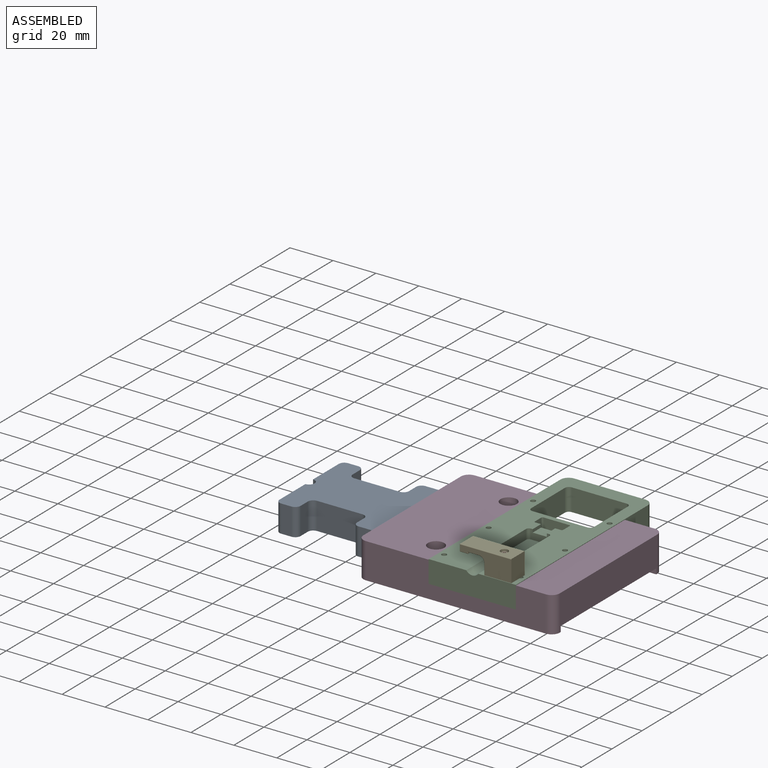
[diagram: assembled view]
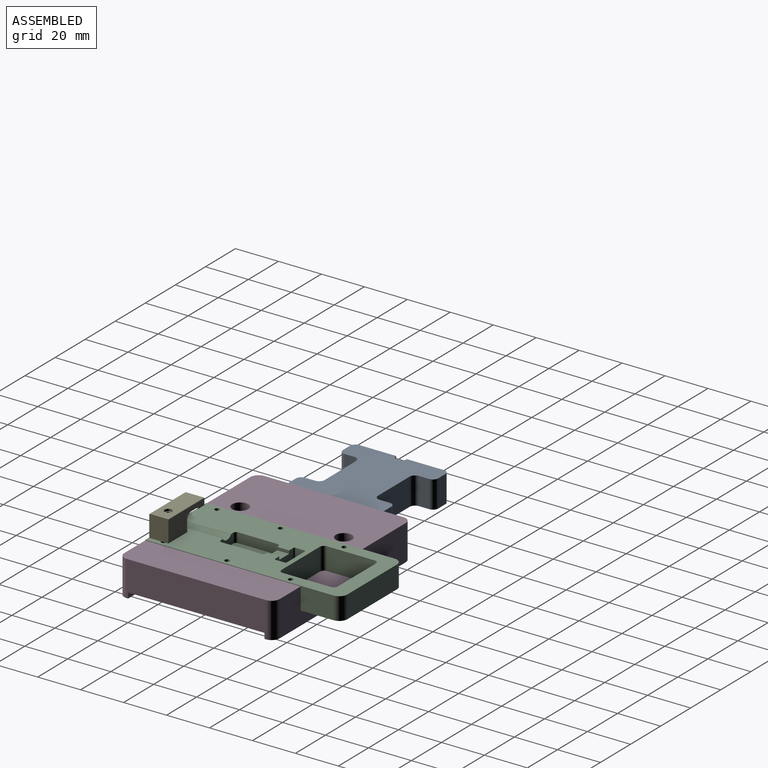
[diagram: assembled view, second angle]
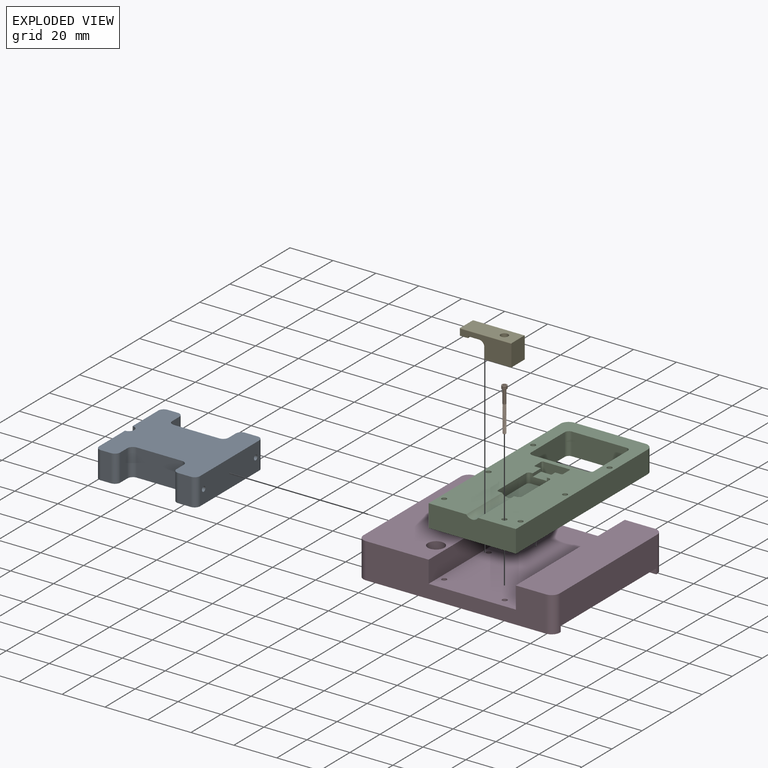
[diagram: exploded view]
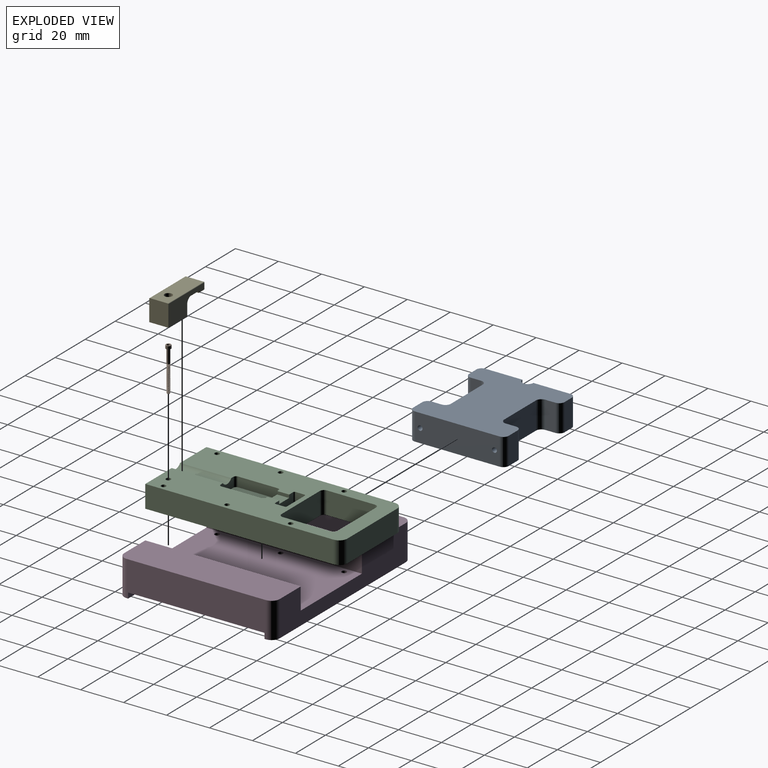
[diagram: exploded view, second angle]
ASSEMBLY  parts=5 mates=7
PART A: 30 faces, bbox 44.5x47x12.7 mm
  f0: plane 39.37x12.7mm, normal (0,-1,0), area 491.8mm2, adj f4,f5,f25,f26,f28,f29
  f1: plane 17.15x12.7mm, normal (0,1,0), area 217.7mm2, adj f17,f25,f26,f27
  f2: cylinder r=2.54mm len=12.7mm, axis (0,0,-1), area 50.7mm2, adj f3,f24,f25,f26
  f3: plane 12.7x5.88mm, normal (-1,0,0), area 74.7mm2, adj f2,f4,f25,f26
  f4: cylinder r=2.54mm len=12.7mm, axis (0,0,-1), area 50.7mm2, adj f0,f3,f25,f26
  f5: cylinder r=2.54mm len=12.7mm, axis (0,0,-1), area 50.7mm2, adj f0,f6,f25,f26
  f6: plane 12.7x5.88mm, normal (1,0,0), area 74.7mm2, adj f5,f7,f25,f26
  f7: cylinder r=2.54mm len=12.7mm, axis (0,0,-1), area 50.7mm2, adj f6,f8,f25,f26
  f8: plane 12.7x4.74mm, normal (0,1,0), area 56.1mm2, adj f7,f9,f25,f26,f29
  f9: cylinder r=2.54mm len=12.7mm, axis (0,0,-1), area 50.7mm2, adj f8,f10,f25,f26
  f10: plane 21.13x12.7mm, normal (1,0,0), area 268.4mm2, adj f9,f11,f25,f26
  f11: cylinder r=2.54mm len=12.7mm, axis (0,0,-1), area 50.7mm2, adj f10,f12,f25,f26
  f12: plane 12.7x4.74mm, normal (0,-1,0), area 60.2mm2, adj f11,f13,f25,f26
  f13: cylinder r=2.54mm len=12.7mm, axis (0,0,-1), area 50.7mm2, adj f12,f14,f25,f26
  f14: plane 12.7x4.74mm, normal (1,0,0), area 60.2mm2, adj f13,f15,f25,f26
  f15: cylinder r=2.54mm len=12.7mm, axis (0,0,-1), area 50.7mm2, adj f14,f16,f25,f26
  f16: plane 17.15x12.7mm, normal (0,1,0), area 217.7mm2, adj f15,f25,f26,f27
  f17: cylinder r=2.54mm len=12.7mm, axis (0,0,-1), area 50.7mm2, adj f1,f18,f25,f26
  f18: plane 12.7x4.74mm, normal (-1,0,0), area 60.2mm2, adj f17,f19,f25,f26
  f19: cylinder r=2.54mm len=12.7mm, axis (0,0,-1), area 50.7mm2, adj f18,f20,f25,f26
  f20: plane 12.7x4.74mm, normal (0,-1,0), area 60.2mm2, adj f19,f21,f25,f26
  f21: cylinder r=2.54mm len=12.7mm, axis (0,0,-1), area 50.7mm2, adj f20,f22,f25,f26
  f22: plane 21.13x12.7mm, normal (-1,0,0), area 268.4mm2, adj f21,f23,f25,f26
  f23: cylinder r=2.54mm len=12.7mm, axis (0,0,-1), area 50.7mm2, adj f22,f24,f25,f26
  f24: plane 12.7x4.74mm, normal (0,1,0), area 56.1mm2, adj f2,f23,f25,f26,f28
  f25: plane 46.99x44.45mm, normal (0,0,1), area 1558.4mm2, adj f0,f1,f2,f3,f4,f5,f6,f7
  f26: plane 46.99x44.45mm, normal (0,0,-1), area 1558.4mm2, adj f0,f1,f2,f3,f4,f5,f6,f7
  f27: cylinder r=2.54mm len=12.7mm, axis (0,0,1), area 101.3mm2, adj f1,f16,f25,f26
  f28: cylinder r=1.14mm len=10.96mm, axis (0,1,0), area 78.7mm2, adj f0,f24
  f29: cylinder r=1.14mm len=10.96mm, axis (0,1,0), area 78.7mm2, adj f0,f8
PART B: 65 faces, bbox 2.7x21x2.7 mm
  f0: cylinder r=0.56mm len=12.59mm, axis (0,1,0), area 15.8mm2, adj f1,f2,f45,f46
  f1: bspline ~12.77x1.76mm, area 39mm2, adj f0,f3,f4,f5,f6,f7,f8,f9
  f2: bspline ~12.98x1.76mm, area 39.1mm2, adj f0,f3,f4,f5,f6,f7,f8,f9
  f3: cylinder r=0.76mm len=6.43mm, axis (0,-1,0), area 30.4mm2, adj f1,f2,f4,f46,f49
  f4: cylinder r=0.76mm len=1.52mm, axis (0,-1,0), area 0.2mm2, adj f1,f2,f3,f5
  f5: cylinder r=0.76mm len=1.52mm, axis (0,-1,0), area 0.2mm2, adj f1,f2,f4,f6
  f6: cylinder r=0.76mm len=1.52mm, axis (0,-1,0), area 0.2mm2, adj f1,f2,f5,f7
  f7: cylinder r=0.76mm len=1.52mm, axis (0,-1,0), area 0.2mm2, adj f1,f2,f6,f8
  f8: cylinder r=0.76mm len=1.52mm, axis (0,-1,0), area 0.2mm2, adj f1,f2,f7,f9
  f9: cylinder r=0.76mm len=1.52mm, axis (0,-1,0), area 0.2mm2, adj f1,f2,f8,f10
  f10: cylinder r=0.76mm len=1.52mm, axis (0,-1,0), area 0.2mm2, adj f1,f2,f9,f11
  f11: cylinder r=0.76mm len=1.52mm, axis (0,-1,0), area 0.2mm2, adj f1,f2,f10,f12
  f12: cylinder r=0.76mm len=1.52mm, axis (0,-1,0), area 0.2mm2, adj f1,f2,f11,f13
  f13: cylinder r=0.76mm len=1.52mm, axis (0,-1,0), area 0.2mm2, adj f1,f2,f12,f14
  f14: cylinder r=0.76mm len=1.52mm, axis (0,-1,0), area 0.2mm2, adj f1,f2,f13,f15
  f15: cylinder r=0.76mm len=1.52mm, axis (0,-1,0), area 0.2mm2, adj f1,f2,f14,f16
  f16: cylinder r=0.76mm len=1.52mm, axis (0,-1,0), area 0.2mm2, adj f1,f2,f15,f17
  f17: cylinder r=0.76mm len=1.52mm, axis (0,-1,0), area 0.2mm2, adj f1,f2,f16,f18
  f18: cylinder r=0.76mm len=1.52mm, axis (0,-1,0), area 0.2mm2, adj f1,f2,f17,f19
  f19: cylinder r=0.76mm len=1.52mm, axis (0,-1,0), area 0.2mm2, adj f1,f2,f18,f20
  f20: cylinder r=0.76mm len=1.52mm, axis (0,-1,0), area 0.2mm2, adj f1,f2,f19,f21
  f21: cylinder r=0.76mm len=1.52mm, axis (0,-1,0), area 0.2mm2, adj f1,f2,f20,f22
  f22: cylinder r=0.76mm len=1.52mm, axis (0,-1,0), area 0.2mm2, adj f1,f2,f21,f23
  f23: cylinder r=0.76mm len=1.52mm, axis (0,-1,0), area 0.2mm2, adj f1,f2,f22,f24
  f24: cylinder r=0.76mm len=1.52mm, axis (0,-1,0), area 0.2mm2, adj f1,f2,f23,f25
  f25: cylinder r=0.76mm len=1.52mm, axis (0,-1,0), area 0.2mm2, adj f1,f2,f24,f26
  f26: cylinder r=0.76mm len=1.52mm, axis (0,-1,0), area 0.2mm2, adj f1,f2,f25,f27
  f27: cylinder r=0.76mm len=1.52mm, axis (0,-1,0), area 0.2mm2, adj f1,f2,f26,f28
  f28: cylinder r=0.76mm len=1.52mm, axis (0,-1,0), area 0.2mm2, adj f1,f2,f27,f29
  f29: cylinder r=0.76mm len=1.52mm, axis (0,-1,0), area 0.2mm2, adj f1,f2,f28,f30
  f30: cylinder r=0.76mm len=1.52mm, axis (0,-1,0), area 0.2mm2, adj f1,f2,f29,f31
  f31: cylinder r=0.76mm len=1.52mm, axis (0,-1,0), area 0.2mm2, adj f1,f2,f30,f32
  f32: cylinder r=0.76mm len=1.52mm, axis (0,-1,0), area 0.2mm2, adj f1,f2,f31,f33
  f33: cylinder r=0.76mm len=1.52mm, axis (0,-1,0), area 0.2mm2, adj f1,f2,f32,f34
  f34: cylinder r=0.76mm len=1.52mm, axis (0,-1,0), area 0.2mm2, adj f1,f2,f33,f35
  f35: cylinder r=0.76mm len=1.52mm, axis (0,-1,0), area 0.2mm2, adj f1,f2,f34,f36
  f36: cylinder r=0.76mm len=1.52mm, axis (0,-1,0), area 0.2mm2, adj f1,f2,f35,f37
  f37: cylinder r=0.76mm len=1.52mm, axis (0,-1,0), area 0.2mm2, adj f1,f2,f36,f38
  f38: cylinder r=0.76mm len=1.52mm, axis (0,-1,0), area 0.2mm2, adj f1,f2,f37,f39
  f39: cylinder r=0.76mm len=1.52mm, axis (0,-1,0), area 0.2mm2, adj f1,f2,f38,f40
  f40: cylinder r=0.76mm len=1.52mm, axis (0,-1,0), area 0.2mm2, adj f1,f2,f39,f41
  f41: cylinder r=0.76mm len=1.52mm, axis (0,-1,0), area 0.2mm2, adj f1,f2,f40,f42
  f42: cylinder r=0.76mm len=1.52mm, axis (0,-1,0), area 0.2mm2, adj f1,f2,f41,f43
  f43: cylinder r=0.76mm len=0.54mm, axis (0,-1,0), area 0mm2, adj f2,f42,f45
  f44: plane 1.05x1.05mm, normal (0,-1,0), area 0.9mm2, adj f45
  f45: cone r=0.52mm half-angle=45deg, axis (0,1,0), area 0.7mm2, adj f0,f1,f2,f43,f44
  f46: cone r=0.76mm half-angle=70deg, axis (0,1,0), area 0.5mm2, adj f0,f1,f2,f3
  f47: cylinder r=1.22mm len=2.44mm, axis (0,-1,0), area 10.3mm2, adj f63,f64
  f48: plane 2.19x2.19mm, normal (0,1,0), area 2.1mm2, adj f50,f51,f52,f53,f54,f55,f63
  f49: plane 2.32x2.32mm, normal (0,-1,0), area 2.4mm2, adj f3,f64
  f50: cone r=0.73mm half-angle=45deg, axis (0,1,0), area 0mm2, adj f48,f57
  f51: cone r=0.73mm half-angle=45deg, axis (0,1,0), area 0mm2, adj f48,f58
  f52: cone r=0.73mm half-angle=45deg, axis (0,1,0), area 0mm2, adj f48,f59
  f53: cone r=0.73mm half-angle=45deg, axis (0,1,0), area 0mm2, adj f48,f60
  f54: cone r=0.73mm half-angle=45deg, axis (0,1,0), area 0mm2, adj f48,f61
  f55: cone r=0.73mm half-angle=45deg, axis (0,1,0), area 0mm2, adj f48,f62
  f56: plane 1.47x1.27mm, normal (0,1,0), area 1.4mm2, adj f57,f58,f59,f60,f61,f62
  f57: plane 1.23x0.91mm, normal (-0.5,0,-0.87), area 0.7mm2, adj f50,f56,f58,f62
  f58: plane 1.23x1.01mm, normal (-1,0,0), area 0.7mm2, adj f51,f56,f57,f59
  f59: plane 1.23x0.91mm, normal (-0.5,0,0.87), area 0.7mm2, adj f52,f56,f58,f60
  f60: plane 1.23x0.91mm, normal (0.5,0,0.87), area 0.7mm2, adj f53,f56,f59,f61
  f61: plane 1.23x1.01mm, normal (1,0,0), area 0.7mm2, adj f54,f56,f60,f62
  f62: plane 1.23x0.91mm, normal (0.5,0,-0.87), area 0.7mm2, adj f55,f56,f57,f61
  f63: cone r=1.1mm half-angle=45deg, axis (0,-1,0), area 1.3mm2, adj f47,f48
  f64: cone r=1.22mm half-angle=45deg, axis (0,1,0), area 0.6mm2, adj f47,f49
PART C: 45 faces, bbox 40.6x91.4x10.4 mm
  f0: plane 40.64x10.41mm, normal (0,-1,0), area 417.6mm2, adj f8,f9,f14,f15,f16
  f1: cylinder r=1.91mm len=10.41mm, axis (0,0,-1), area 31.2mm2, adj f2,f13,f14,f15
  f2: plane 22.35x10.41mm, normal (-1,0,0), area 232.8mm2, adj f1,f3,f14,f15
  f3: cylinder r=1.91mm len=10.41mm, axis (0,0,-1), area 31.2mm2, adj f2,f4,f14,f15
  f4: plane 25.53x10.41mm, normal (0,1,0), area 265.8mm2, adj f3,f5,f14,f15
  f5: cylinder r=1.91mm len=10.41mm, axis (0,0,-1), area 31.2mm2, adj f4,f6,f14,f15
  f6: plane 22.35x10.41mm, normal (1,0,0), area 232.8mm2, adj f5,f7,f14,f15
  f7: cylinder r=1.91mm len=10.41mm, axis (0,0,-1), area 31.2mm2, adj f6,f13,f14,f15
  f8: plane 87.63x10.41mm, normal (-1,0,0), area 912.6mm2, adj f0,f12,f14,f15
  f9: plane 87.63x10.41mm, normal (1,0,0), area 912.6mm2, adj f0,f10,f14,f15
  f10: cylinder r=3.81mm len=10.41mm, axis (0,0,-1), area 62.3mm2, adj f9,f11,f14,f15
  f11: plane 33.02x10.41mm, normal (0,1,0), area 343.9mm2, adj f10,f12,f14,f15
  f12: cylinder r=3.81mm len=10.41mm, axis (0,0,-1), area 62.3mm2, adj f8,f11,f14,f15
  f13: plane 25.53x10.41mm, normal (0,-1,0), area 265.8mm2, adj f1,f7,f14,f15
  f14: plane 91.44x40.64mm, normal (0,0,1), area 2916.8mm2, adj f0,f1,f2,f3,f4,f5,f6,f7
  f15: plane 91.44x40.64mm, normal (0,0,-1), area 2446.4mm2, adj f0,f1,f2,f3,f4,f5,f6,f7
  f16: cylinder r=3.42mm len=23.84mm, axis (0,-1,0), area 155.9mm2, adj f0,f15,f17
  f17: plane 8.38x4.56mm, normal (0,1,0), area 32.5mm2, adj f15,f16,f21,f22,f25
  f18: plane 8.38x4.56mm, normal (0,-1,0), area 28.7mm2, adj f15,f19,f24,f25,f26,f27,f28
  f19: cylinder r=1.27mm len=4.56mm, axis (0,0,-1), area 9.1mm2, adj f15,f18,f20,f25
  f20: plane 18.5x4.56mm, normal (-1,0,0), area 84.4mm2, adj f15,f19,f21,f25
  f21: cylinder r=1.27mm len=4.56mm, axis (0,0,-1), area 9.1mm2, adj f15,f17,f20,f25
  f22: cylinder r=1.27mm len=4.56mm, axis (0,0,-1), area 9.1mm2, adj f15,f17,f23,f25
  f23: plane 18.5x4.56mm, normal (1,0,0), area 84.4mm2, adj f15,f22,f24,f25
  f24: cylinder r=1.27mm len=4.56mm, axis (0,0,-1), area 9.1mm2, adj f15,f18,f23,f25
  f25: plane 21.04x10.92mm, normal (0,0,-1), area 228.5mm2, adj f17,f18,f19,f20,f21,f22,f23,f24
  f26: plane 5.56x1.45mm, normal (-1,0,0), area 8.1mm2, adj f15,f18,f28,f29
  f27: plane 5.56x1.45mm, normal (1,0,0), area 8.1mm2, adj f15,f18,f28,f29
  f28: plane 6.6x5.56mm, normal (0,0,-1), area 36.7mm2, adj f18,f26,f27,f29
  f29: plane 11.94x4.92mm, normal (0,1,0), area 49.1mm2, adj f15,f26,f27,f28,f30,f36,f37
  f30: cylinder r=0.64mm len=4.92mm, axis (0,0,-1), area 4.9mm2, adj f15,f29,f31,f37
  f31: plane 4.92x4.2mm, normal (1,0,0), area 20.7mm2, adj f15,f30,f32,f37
  f32: cylinder r=0.64mm len=4.92mm, axis (0,0,-1), area 4.9mm2, adj f15,f31,f33,f37
  f33: plane 11.94x4.92mm, normal (0,-1,0), area 58.7mm2, adj f15,f32,f34,f37
  f34: cylinder r=0.64mm len=4.92mm, axis (0,0,-1), area 4.9mm2, adj f15,f33,f35,f37
  f35: plane 4.92x4.2mm, normal (-1,0,0), area 20.7mm2, adj f15,f34,f36,f37
  f36: cylinder r=0.64mm len=4.92mm, axis (0,0,-1), area 4.9mm2, adj f15,f29,f35,f37
  f37: plane 13.21x5.47mm, normal (0,0,-1), area 72mm2, adj f29,f30,f31,f32,f33,f34,f35,f36
  f38: cylinder r=1.14mm len=10.41mm, axis (0,0,-1), area 74.8mm2, adj f14,f15
  f39: cylinder r=1.14mm len=10.41mm, axis (0,0,-1), area 74.8mm2, adj f14,f15
  f40: cylinder r=1.14mm len=10.41mm, axis (0,0,-1), area 74.8mm2, adj f14,f15
  f41: cylinder r=1.14mm len=10.41mm, axis (0,0,-1), area 74.8mm2, adj f14,f15
  f42: cylinder r=1.14mm len=10.41mm, axis (0,0,-1), area 74.8mm2, adj f14,f15
  f43: cylinder r=1.14mm len=10.41mm, axis (0,0,-1), area 74.8mm2, adj f14,f15
  f44: cylinder r=1.14mm len=10.41mm, axis (0,0,-1), area 74.8mm2, adj f14,f15
PART D: 36 faces, bbox 91.4x72.4x16.5 mm
  f0: plane 64.04x2.54mm, normal (0,1,0), area 162.7mm2, adj f1,f12,f18,f35
  f1: plane 64.77x16.51mm, normal (-1,0,0), area 899.9mm2, adj f0,f2,f9,f10,f11,f12,f16,f18
  f2: plane 91.44x4.45mm, normal (0,0,-1), area 400.2mm2, adj f1,f4,f7,f8,f9,f16
  f3: plane 72.39x17.78mm, normal (0,0,1), area 1280.9mm2, adj f4,f5,f6,f7,f8,f13
  f4: plane 83.82x16.51mm, normal (0,1,0), area 971mm2, adj f2,f3,f8,f9,f11,f13,f14,f15
  f5: plane 83.82x16.51mm, normal (0,-1,0), area 971mm2, adj f3,f6,f10,f11,f12,f13,f14,f15
  f6: cylinder r=3.81mm len=16.51mm, axis (0,0,-1), area 98.8mm2, adj f3,f5,f7,f12
  f7: plane 64.77x16.51mm, normal (1,0,0), area 908.1mm2, adj f2,f3,f6,f8,f12,f16,f17,f18
  f8: cylinder r=3.81mm len=16.51mm, axis (0,0,-1), area 98.8mm2, adj f2,f3,f4,f7
  f9: cylinder r=3.81mm len=16.51mm, axis (0,0,-1), area 98.8mm2, adj f1,f2,f4,f11
  f10: cylinder r=3.81mm len=16.51mm, axis (0,0,-1), area 98.8mm2, adj f1,f5,f11,f12
  f11: plane 72.39x33.02mm, normal (0,0,1), area 2292.9mm2, adj f1,f4,f5,f9,f10,f14,f19,f21
  f12: plane 91.44x4.45mm, normal (0,0,-1), area 398.7mm2, adj f0,f1,f5,f6,f7,f10,f17,f35
  f13: plane 72.39x10.16mm, normal (-1,0,0), area 735.5mm2, adj f3,f4,f5,f15
  f14: plane 72.39x10.16mm, normal (1,0,0), area 735.5mm2, adj f4,f5,f11,f15
  f15: plane 72.39x40.64mm, normal (0,0,1), area 2913.2mm2, adj f4,f5,f13,f14,f25,f26,f27,f28
  f16: plane 91.44x2.54mm, normal (0,-1,0), area 232.3mm2, adj f1,f2,f7,f18
  f17: plane 25.17x2.54mm, normal (0,1,0), area 63.9mm2, adj f7,f12,f18,f35
  f18: plane 91.44x63.5mm, normal (0,0,-1), area 5742.6mm2, adj f0,f1,f7,f16,f17,f23,f24,f25
  f19: cylinder r=3.81mm len=7.62mm, axis (0,0,1), area 152mm2, adj f11,f20
  f20: plane 7.62x7.62mm, normal (0,0,1), area 27.3mm2, adj f19,f24
  f21: cylinder r=3.81mm len=7.62mm, axis (0,0,1), area 152mm2, adj f11,f22
  f22: plane 7.62x7.62mm, normal (0,0,1), area 27.3mm2, adj f21,f23
  f23: cylinder r=2.41mm len=7.62mm, axis (0,0,1), area 115.5mm2, adj f18,f22
  f24: cylinder r=2.41mm len=7.62mm, axis (0,0,1), area 115.5mm2, adj f18,f20
  f25: cylinder r=1.14mm len=3.81mm, axis (0,0,-1), area 27.4mm2, adj f15,f18
  f26: cylinder r=1.14mm len=3.81mm, axis (0,0,-1), area 27.4mm2, adj f15,f18
  f27: cylinder r=1.14mm len=3.81mm, axis (0,0,-1), area 27.4mm2, adj f15,f18
  f28: cylinder r=1.14mm len=3.81mm, axis (0,0,-1), area 27.4mm2, adj f15,f18
  f29: cylinder r=1.14mm len=3.81mm, axis (0,0,-1), area 27.4mm2, adj f15,f18
  f30: cylinder r=1.14mm len=3.81mm, axis (0,0,-1), area 27.4mm2, adj f15,f18
  f31: cylinder r=1.14mm len=25.4mm, axis (-1,0,0), area 182.4mm2, adj f1,f32
  f32: plane 2.29x2.29mm, normal (-1,0,0), area 4.1mm2, adj f31
  f33: cylinder r=1.14mm len=25.4mm, axis (-1,0,0), area 182.4mm2, adj f1,f34
  f34: plane 2.29x2.29mm, normal (-1,0,0), area 4.1mm2, adj f33
  f35: cylinder r=1.14mm len=6.35mm, axis (0,0,1), area 35.2mm2, adj f0,f12,f15,f17,f18
PART E: 34 faces, bbox 24.1x8.9x10.2 mm
  f0: plane 12.7x8.89mm, normal (0,0,-1), area 109.1mm2, adj f1,f8,f9,f10,f11,f27,f33
  f1: plane 8.38x5.08mm, normal (1,0,0), area 42.6mm2, adj f0,f2,f11,f27
  f2: cylinder r=2.54mm len=8.38mm, axis (0,1,0), area 33.4mm2, adj f1,f3,f12,f29
  f3: plane 8.38x5.08mm, normal (0,0,-1), area 42.6mm2, adj f2,f4,f13,f30
  f4: plane 8.38x0.76mm, normal (-1,0,0), area 6.4mm2, adj f3,f5,f15,f28
  f5: plane 8.38x3.56mm, normal (0,0,-1), area 29.8mm2, adj f4,f17,f23,f26
  f6: plane 8.38x2.79mm, normal (1,0,0), area 23.4mm2, adj f18,f19,f23,f24
  f7: plane 23.88x8.38mm, normal (0,0,1), area 190.2mm2, adj f8,f14,f19,f20,f31
  f8: plane 10.16x8.89mm, normal (-1,0,0), area 90.3mm2, adj f0,f7,f9,f10,f14,f20
  f9: plane 23.88x9.91mm, normal (0,-1,0), area 150.7mm2, adj f0,f8,f11,f12,f13,f14,f15,f17
  f10: plane 23.88x9.91mm, normal (0,1,0), area 150.7mm2, adj f0,f8,f20,f24,f26,f27,f28,f29
  f11: cylinder r=0.25mm len=5.08mm, axis (0,0,-1), area 2mm2, adj f0,f1,f9,f12
  f12: torus R=2.79mm, axis (0,-1,0), area 1.6mm2, adj f2,f9,f11,f13
  f13: cylinder r=0.25mm len=5.33mm, axis (-1,0,0), area 2.1mm2, adj f3,f9,f12,f15
  f14: cylinder r=0.25mm len=23.88mm, axis (1,0,0), area 9.5mm2, adj f7,f8,f9,f16
  f15: cylinder r=0.25mm len=1.02mm, axis (0,0,1), area 0.3mm2, adj f4,f9,f13,f17
  f16: sphere r=0.25mm, area 0.1mm2, adj f14,f18,f19
  f17: cylinder r=0.25mm len=3.56mm, axis (-1,0,0), area 1.4mm2, adj f5,f9,f15,f21
  f18: cylinder r=0.25mm len=2.79mm, axis (0,0,-1), area 1.1mm2, adj f6,f9,f16,f21
  f19: cylinder r=0.25mm len=8.38mm, axis (0,1,0), area 3.3mm2, adj f6,f7,f16,f22
  f20: cylinder r=0.25mm len=23.88mm, axis (-1,0,0), area 9.5mm2, adj f7,f8,f10,f22
  f21: sphere r=0.25mm, area 0.1mm2, adj f17,f18,f23
  f22: sphere r=0.25mm, area 0.1mm2, adj f19,f20,f24
  f23: cylinder r=0.25mm len=8.38mm, axis (0,1,0), area 3.3mm2, adj f5,f6,f21,f25
  f24: cylinder r=0.25mm len=2.79mm, axis (0,0,1), area 1.1mm2, adj f6,f10,f22,f25
  f25: sphere r=0.25mm, area 0.1mm2, adj f23,f24,f26
  f26: cylinder r=0.25mm len=3.56mm, axis (1,0,0), area 1.4mm2, adj f5,f10,f25,f28
  f27: cylinder r=0.25mm len=5.08mm, axis (0,0,1), area 2mm2, adj f0,f1,f10,f29
  f28: cylinder r=0.25mm len=1.02mm, axis (0,0,-1), area 0.3mm2, adj f4,f10,f26,f30
  f29: torus R=2.79mm, axis (0,-1,0), area 1.6mm2, adj f2,f10,f27,f30
  f30: cylinder r=0.25mm len=5.33mm, axis (1,0,0), area 2.1mm2, adj f3,f10,f28,f29
  f31: cylinder r=1.78mm len=3.56mm, axis (0,0,1), area 24.4mm2, adj f7,f32
  f32: plane 3.56x3.56mm, normal (0,0,1), area 6.2mm2, adj f31,f33
  f33: cylinder r=1.09mm len=7.98mm, axis (0,0,1), area 54.7mm2, adj f0,f32
PLACE A rot(axis=(0,0,1),90deg) t=(55.21,-1.07,-27.92)mm
PLACE B rot(axis=(0,0.71,0.71),180deg) t=(120.23,-8.99,-24.13)mm
PLACE C rot(axis=(0,1,0),180deg) t=(128.87,-13.69,-13.06)mm
PLACE D t=(55.21,-13.69,-29.82)mm
PLACE E rot(axis=(0,0,1),180deg) t=(126.58,-13.44,-13.06)mm
MATE planar A.f0 <-> D.f1  axis (1,0,0) through (55.21,21.15,-27.92)mm
MATE planar D.f15 <-> C.f14  axis (0,0,1) through (108.53,22.55,-23.47)mm
MATE planar C.f9 <-> D.f14  axis (-1,0,0) through (88.23,30.13,-18.27)mm
MATE slider B.f0 <-> E.f31  axis (0,0,-1) through (120.23,-8.99,-5.08)mm
MATE fastened E.f31 <-> C.f44  axis (0,0,-1) through (120.23,-8.99,-13.06)mm
MATE fastened A.f29 <-> D.f31  axis (1,0,0) through (55.21,38.47,-21.57)mm
MATE planar C.f0 <-> D.f5  axis (0,-1,0) through (120.11,-13.69,-13.06)mm
